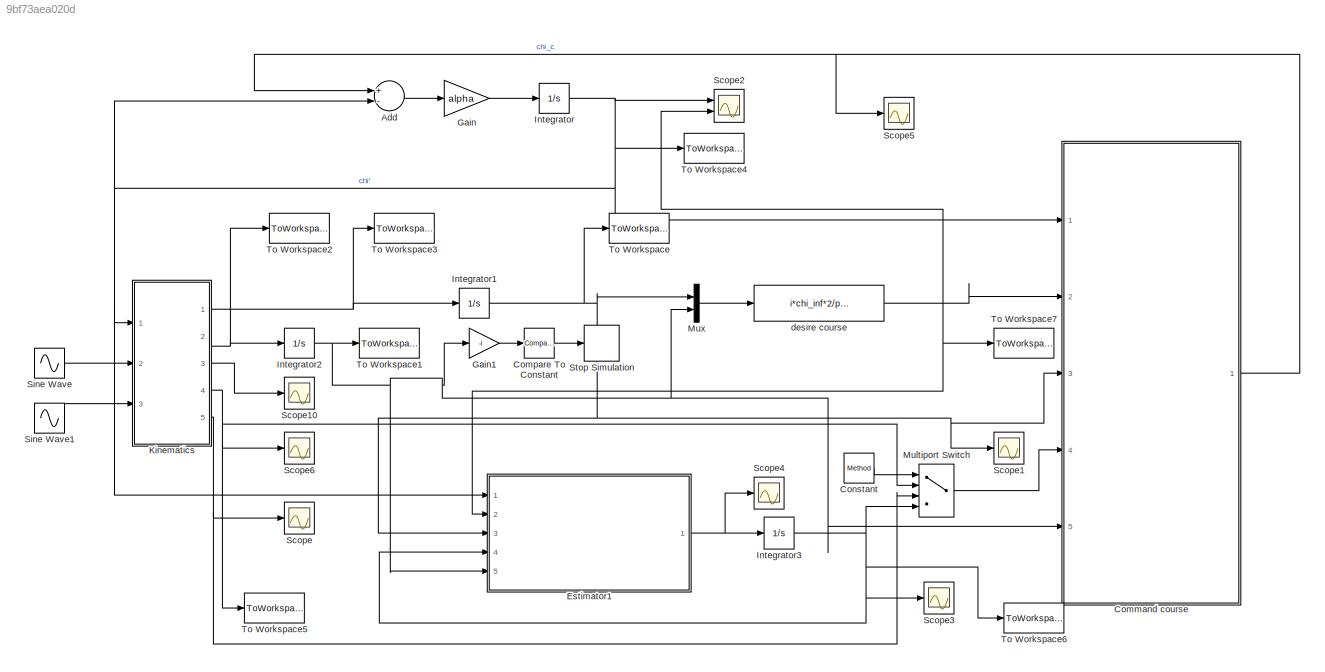
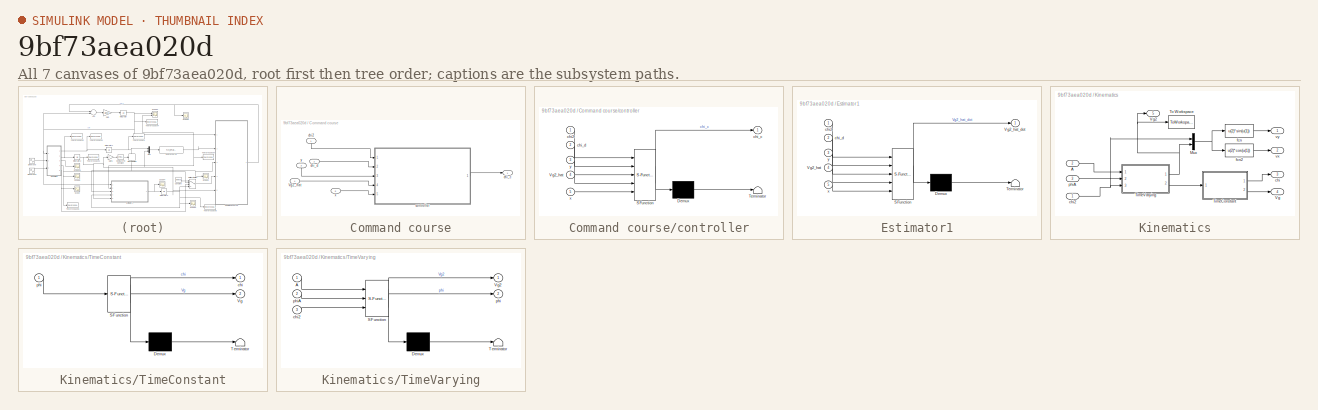
[diagram: thumbnail index - all 7 canvases of the model, root first then tree order]
MODEL slx_9bf73aea020d
KIND model
CONFIG AbsTol = auto
CONFIG FixedStep = 0.001
CONFIG MaxStep = auto
CONFIG MinStep = auto
CONFIG RelTol = 1e-9
CONFIG SampleTimeConstraint = Unconstrained
CONFIG Solver = VariableStepAuto
CONFIG SolverMode = Auto
CONFIG SolverName = VariableStepAuto
CONFIG StartTime = 0.0
CONFIG StopTime = 1000
BLOCK [Sum] Add
  InputSameDT = off
  Inputs = +-
  OutDataTypeStr = Inherit: Inherit via internal rule
  Ports = [2, 1]
  SaturateOnIntegerOverflow = off
BLOCK [SubSystem] Command course
  Ports = [5, 1]
  RequestExecContextInheritance = off
  Variant = off
BLOCK [Inport] Command course/Vg2_hat
  IconDisplay = Port number
  Port = 4
BLOCK [Inport] Command course/chi2
  IconDisplay = Port number
BLOCK [Outport] Command course/chi_c
  IconDisplay = Port number
BLOCK [Inport] Command course/chi_d
  IconDisplay = Port number
  Port = 2
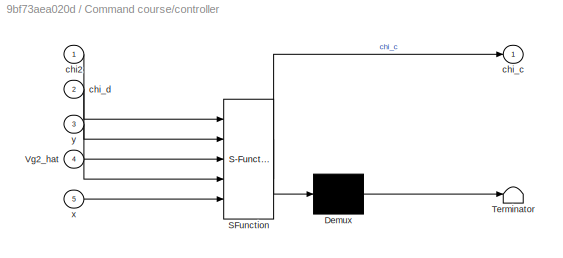
BLOCK [SubSystem] Command course/controller
  ErrorFcn = Stateflow.Translate.translate
  PermitHierarchicalResolution = ExplicitOnly
  Ports = [5, 1]
  RequestExecContextInheritance = off
  SFBlockType = MATLAB Function
  TreatAsAtomicUnit = on
  Variant = off
BLOCK [Demux] Command course/controller/ Demux 
  Outputs = 1
  Ports = [1, 1]
BLOCK [S-Function] Command course/controller/ SFunction 
  EnableBusSupport = on
  FunctionName = sf_sfun
  Parameters = a,alpha,b,chi_inf,epsi,i,k,kk
  PortCounts = [5 2]
  Ports = [5, 2]
  SFunctionDeploymentMode = off
  Tag = Stateflow S-Function RevisedStraightLine 2
BLOCK [Terminator] Command course/controller/ Terminator 
BLOCK [Inport] Command course/controller/Vg2_hat
  IconDisplay = Port number
  Port = 4
BLOCK [Inport] Command course/controller/chi2
  IconDisplay = Port number
BLOCK [Outport] Command course/controller/chi_c
  IconDisplay = Port number
BLOCK [Inport] Command course/controller/chi_d
  IconDisplay = Port number
  Port = 2
BLOCK [Inport] Command course/controller/x
  IconDisplay = Port number
  Port = 5
BLOCK [Inport] Command course/controller/y
  IconDisplay = Port number
  Port = 3
BLOCK [Inport] Command course/x
  IconDisplay = Port number
  Port = 5
BLOCK [Inport] Command course/y
  IconDisplay = Port number
  Port = 3
BLOCK [Reference] Compare To Constant  REF=simulink/Logic and Bit
Operations/Compare
To Constant
  Ports = [1, 1]
  SourceBlock = simulink/Logic and Bit\nOperations/Compare\nTo Constant
  SourceType = Compare To Constant
BLOCK [Constant] Constant
  Value = Method
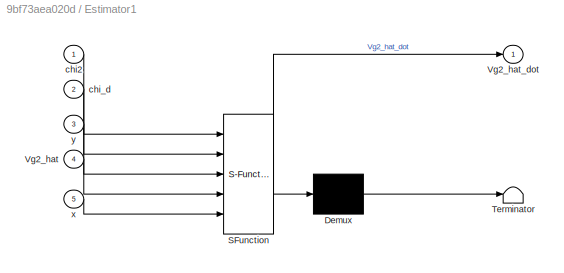
BLOCK [SubSystem] Estimator1
  ErrorFcn = Stateflow.Translate.translate
  PermitHierarchicalResolution = ExplicitOnly
  Ports = [5, 1]
  RequestExecContextInheritance = off
  SFBlockType = MATLAB Function
  TreatAsAtomicUnit = on
  Variant = off
BLOCK [Demux] Estimator1/ Demux 
  Outputs = 1
  Ports = [1, 1]
BLOCK [S-Function] Estimator1/ SFunction 
  EnableBusSupport = on
  FunctionName = sf_sfun
  Parameters = Gamma,Va,W,a,b,chi_inf,epsi,i,k,kk,phiw,y_int
  PortCounts = [5 2]
  Ports = [5, 2]
  SFunctionDeploymentMode = off
  Tag = Stateflow S-Function RevisedStraightLine 5
BLOCK [Terminator] Estimator1/ Terminator 
BLOCK [Inport] Estimator1/Vg2_hat
  IconDisplay = Port number
  Port = 4
BLOCK [Outport] Estimator1/Vg2_hat_dot
  IconDisplay = Port number
BLOCK [Inport] Estimator1/chi2
  IconDisplay = Port number
BLOCK [Inport] Estimator1/chi_d
  IconDisplay = Port number
  Port = 2
BLOCK [Inport] Estimator1/x
  IconDisplay = Port number
  Port = 5
BLOCK [Inport] Estimator1/y
  IconDisplay = Port number
  Port = 3
BLOCK [Gain] Gain
  Gain = alpha
  OutDataTypeStr = Inherit: Inherit via internal rule
  ParamDataTypeStr = Inherit: Inherit via internal rule
  SaturateOnIntegerOverflow = off
BLOCK [Gain] Gain1
  Gain = -i
  OutDataTypeStr = Inherit: Inherit via internal rule
  ParamDataTypeStr = Inherit: Inherit via internal rule
  SaturateOnIntegerOverflow = off
BLOCK [Integrator] Integrator
  InitialCondition = course_int
  Ports = [1, 1]
BLOCK [Integrator] Integrator1
  InitialCondition = y_int
  Ports = [1, 1]
BLOCK [Integrator] Integrator2
  InitialCondition = x_int
  Ports = [1, 1]
BLOCK [Integrator] Integrator3
  InitialCondition = Vg0
  Ports = [1, 1]
BLOCK [SubSystem] Kinematics
  Ports = [3, 5]
  RequestExecContextInheritance = off
  Variant = off
BLOCK [Inport] Kinematics/A
  IconDisplay = Port number
  Port = 2
BLOCK [Mux] Kinematics/Mux
  DisplayOption = bar
  Inputs = 2
  Ports = [2, 1]
BLOCK [SubSystem] Kinematics/TimeConstant
  ErrorFcn = Stateflow.Translate.translate
  PermitHierarchicalResolution = ExplicitOnly
  Ports = [1, 2]
  RequestExecContextInheritance = off
  SFBlockType = MATLAB Function
  TreatAsAtomicUnit = on
  Variant = off
BLOCK [Demux] Kinematics/TimeConstant/ Demux 
  Outputs = 1
  Ports = [1, 1]
BLOCK [S-Function] Kinematics/TimeConstant/ SFunction 
  EnableBusSupport = on
  FunctionName = sf_sfun
  Parameters = Va,W,phiw
  PortCounts = [1 3]
  Ports = [1, 3]
  SFunctionDeploymentMode = off
  Tag = Stateflow S-Function RevisedStraightLine 4
BLOCK [Terminator] Kinematics/TimeConstant/ Terminator 
BLOCK [Outport] Kinematics/TimeConstant/Vg
  IconDisplay = Port number
  Port = 2
BLOCK [Outport] Kinematics/TimeConstant/chi
  IconDisplay = Port number
BLOCK [Inport] Kinematics/TimeConstant/phi
  IconDisplay = Port number
BLOCK [SubSystem] Kinematics/TimeVarying
  ErrorFcn = Stateflow.Translate.translate
  PermitHierarchicalResolution = ExplicitOnly
  Ports = [3, 2]
  RequestExecContextInheritance = off
  SFBlockType = MATLAB Function
  TreatAsAtomicUnit = on
  Variant = off
BLOCK [Demux] Kinematics/TimeVarying/ Demux 
  Outputs = 1
  Ports = [1, 1]
BLOCK [S-Function] Kinematics/TimeVarying/ SFunction 
  EnableBusSupport = on
  FunctionName = sf_sfun
  Parameters = Va,W,phiw
  PortCounts = [3 3]
  Ports = [3, 3]
  SFunctionDeploymentMode = off
  Tag = Stateflow S-Function RevisedStraightLine 1
BLOCK [Terminator] Kinematics/TimeVarying/ Terminator 
BLOCK [Inport] Kinematics/TimeVarying/A
  IconDisplay = Port number
BLOCK [Outport] Kinematics/TimeVarying/Vg2
  IconDisplay = Port number
BLOCK [Inport] Kinematics/TimeVarying/chi2
  IconDisplay = Port number
  Port = 3
BLOCK [Outport] Kinematics/TimeVarying/phi
  IconDisplay = Port number
  Port = 2
BLOCK [Inport] Kinematics/TimeVarying/phiA
  IconDisplay = Port number
  Port = 2
BLOCK [ToWorkspace] Kinematics/To Workspace
  FixptAsFi = on
  MaxDataPoints = inf
  Ports = [1]
  SampleTime = -1
  Save2DSignal = 3-D array (concatenate along third dimension)
  SaveFormat = Timeseries
  VariableName = Vg2
BLOCK [Outport] Kinematics/Vg
  IconDisplay = Port number
  Port = 4
BLOCK [Outport] Kinematics/Vg2
  IconDisplay = Port number
  Port = 5
BLOCK [Outport] Kinematics/chi
  IconDisplay = Port number
  Port = 3
BLOCK [Inport] Kinematics/chi2
  IconDisplay = Port number
BLOCK [Fcn] Kinematics/fcn
  Expr = u(2)*sin(u(1))
BLOCK [Fcn] Kinematics/fcn2
  Expr = u(2)*cos(u(1))
BLOCK [Inport] Kinematics/phiA
  IconDisplay = Port number
  Port = 3
BLOCK [Outport] Kinematics/vx
  IconDisplay = Port number
  Port = 2
BLOCK [Outport] Kinematics/vy
  IconDisplay = Port number
BLOCK [MultiPortSwitch] Multiport Switch
  InputSameDT = off
  Ports = [4, 1]
  SaturateOnIntegerOverflow = off
BLOCK [Mux] Mux
  DisplayOption = bar
  Inputs = 2
  Ports = [2, 1]
BLOCK [Scope] Scope
  Ports = [1]
  ScopeSpecificationString = Simulink.scopes.TimeScopeBlockCfg('CurrentConfiguration', extmgr.ConfigurationSet(extmgr.Configuration('Core','General UI',true),extmgr.Configuration('Core','Source UI',true),extmgr.Configuration('Sources','WiredSimulink',true,'DataLoggingVariableName','ScopeData1','DataLoggingSaveFormat','Array','DataLoggingDecimation','1'),extmgr.Configuration('Visuals','Time Domain',true,'SerializedDisplays',{s...<+1464ch>
BLOCK [Scope] Scope1
  Ports = [1]
  ScopeSpecificationString = Simulink.scopes.TimeScopeBlockCfg('CurrentConfiguration', extmgr.ConfigurationSet(extmgr.Configuration('Core','General UI',true),extmgr.Configuration('Core','Source UI',true),extmgr.Configuration('Sources','WiredSimulink',true,'DataLoggingVariableName','ScopeData1','DataLoggingSaveFormat','Array','DataLoggingDecimation','1'),extmgr.Configuration('Visuals','Time Domain',true,'SerializedDisplays',{s...<+2072ch>
BLOCK [Scope] Scope10
  Ports = [1]
  ScopeSpecificationString = Simulink.scopes.TimeScopeBlockCfg('CurrentConfiguration', extmgr.ConfigurationSet(extmgr.Configuration('Core','General UI',true),extmgr.Configuration('Core','Source UI',true),extmgr.Configuration('Sources','WiredSimulink',true,'DataLoggingVariableName','ScopeData5'),extmgr.Configuration('Visuals','Time Domain',true,'SerializedDisplays',{struct('MinYLimReal','-0.59211','MaxYLimReal','1.14316','YLab...<+1408ch>
BLOCK [Scope] Scope2
  NumInputPorts = 2
  Ports = [2]
  ScopeSpecificationString = Simulink.scopes.TimeScopeBlockCfg('CurrentConfiguration', extmgr.ConfigurationSet(extmgr.Configuration('Core','General UI',true),extmgr.Configuration('Core','Source UI',true),extmgr.Configuration('Sources','WiredSimulink',true,'DataLoggingVariableName','ScopeData2'),extmgr.Configuration('Visuals','Time Domain',true,'SerializedDisplays',{struct('MinYLimReal','-1.59686','MaxYLimReal','1.05009','YLab...<+1453ch>
BLOCK [Scope] Scope3
  Ports = [1]
  ScopeSpecificationString = Simulink.scopes.TimeScopeBlockCfg('CurrentConfiguration', extmgr.ConfigurationSet(extmgr.Configuration('Core','General UI',true),extmgr.Configuration('Core','Source UI',true),extmgr.Configuration('Sources','WiredSimulink',true,'DataLoggingVariableName','ScopeData1'),extmgr.Configuration('Visuals','Time Domain',true,'SerializedDisplays',{struct('MinYLimReal','12.01287','MaxYLimReal','12.88413','YLa...<+1434ch>
BLOCK [Scope] Scope4
  Ports = [1]
  ScopeSpecificationString = Simulink.scopes.TimeScopeBlockCfg('CurrentConfiguration', extmgr.ConfigurationSet(extmgr.Configuration('Core','General UI',true),extmgr.Configuration('Core','Source UI',true),extmgr.Configuration('Sources','WiredSimulink',true,'DataLoggingVariableName','ScopeData2'),extmgr.Configuration('Visuals','Time Domain',true,'SerializedDisplays',{struct('MinYLimReal','-2.36479','MaxYLimReal','1.54751','YLab...<+1427ch>
BLOCK [Scope] Scope5
  Ports = [1]
  ScopeSpecificationString = Simulink.scopes.TimeScopeBlockCfg('CurrentConfiguration', extmgr.ConfigurationSet(extmgr.Configuration('Core','General UI',true),extmgr.Configuration('Core','Source UI',true),extmgr.Configuration('Sources','WiredSimulink',true,'DataLoggingVariableName','ScopeData1'),extmgr.Configuration('Visuals','Time Domain',true,'SerializedDisplays',{struct('MinYLimReal','-1.93676','MaxYLimReal','0.21519','YLab...<+1417ch>
BLOCK [Scope] Scope6
  Ports = [1]
  ScopeSpecificationString = Simulink.scopes.TimeScopeBlockCfg('CurrentConfiguration', extmgr.ConfigurationSet(extmgr.Configuration('Core','General UI',true),extmgr.Configuration('Core','Source UI',true),extmgr.Configuration('Sources','WiredSimulink',true,'DataLoggingVariableName','ScopeData1'),extmgr.Configuration('Visuals','Time Domain',true,'SerializedDisplays',{struct('MinYLimReal','5.97405','MaxYLimReal','16.35662','YLab...<+1713ch>
BLOCK [Sin] Sine Wave
  Amplitude = A
  Frequency = 0.1
  Phase = pi/2
  Ports = [0, 1]
  SampleTime = 0
BLOCK [Sin] Sine Wave1
  Amplitude = phiA
  Frequency = 0.1
  Ports = [0, 1]
  SampleTime = 0
BLOCK [Stop] Stop Simulation
BLOCK [ToWorkspace] To Workspace
  FixptAsFi = on
  MaxDataPoints = inf
  Ports = [1]
  SampleTime = -1
  Save2DSignal = 3-D array (concatenate along third dimension)
  SaveFormat = Timeseries
  VariableName = y
BLOCK [ToWorkspace] To Workspace1
  FixptAsFi = on
  MaxDataPoints = inf
  Ports = [1]
  SampleTime = -1
  Save2DSignal = 3-D array (concatenate along third dimension)
  SaveFormat = Timeseries
  VariableName = x
BLOCK [ToWorkspace] To Workspace2
  FixptAsFi = on
  MaxDataPoints = inf
  Ports = [1]
  SampleTime = -1
  Save2DSignal = 3-D array (concatenate along third dimension)
  SaveFormat = Timeseries
  VariableName = vx
BLOCK [ToWorkspace] To Workspace3
  FixptAsFi = on
  MaxDataPoints = inf
  Ports = [1]
  SampleTime = -1
  Save2DSignal = 3-D array (concatenate along third dimension)
  SaveFormat = Timeseries
  VariableName = vy
BLOCK [ToWorkspace] To Workspace4
  FixptAsFi = on
  MaxDataPoints = inf
  Ports = [1]
  SampleTime = -1
  Save2DSignal = 3-D array (concatenate along third dimension)
  SaveFormat = Timeseries
  VariableName = course
BLOCK [ToWorkspace] To Workspace5
  FixptAsFi = on
  MaxDataPoints = inf
  Ports = [1]
  SampleTime = -1
  Save2DSignal = 3-D array (concatenate along third dimension)
  SaveFormat = Timeseries
  VariableName = Vg
BLOCK [ToWorkspace] To Workspace6
  FixptAsFi = on
  MaxDataPoints = inf
  Ports = [1]
  SampleTime = -1
  Save2DSignal = 3-D array (concatenate along third dimension)
  SaveFormat = Timeseries
  VariableName = Vg2hat
BLOCK [ToWorkspace] To Workspace7
  FixptAsFi = on
  MaxDataPoints = inf
  Ports = [1]
  SampleTime = -1
  Save2DSignal = 3-D array (concatenate along third dimension)
  SaveFormat = Timeseries
  VariableName = chi_d
BLOCK [Fcn] desire course
  Expr = i*chi_inf*2/pi*atan(k*(u(1)-a*u(2)-b))+ang
LINE Add:1 -> Gain:1
LINE Command course/Vg2_hat:1 -> Command course/controller:4
LINE Command course/chi2:1 -> Command course/controller:1
LINE Command course/chi_d:1 -> Command course/controller:2
LINE Command course/controller:1 -> Command course/chi_c:1
LINE Command course/x:1 -> Command course/controller:5
LINE Command course/y:1 -> Command course/controller:3
NET Command course:1 -> Add:1, Scope5:1
LINE Compare To Constant:1 -> Stop Simulation:1
LINE Constant:1 -> Multiport Switch:1
NET Estimator1:1 -> Integrator3:1, Scope4:1
LINE Gain1:1 -> Compare To Constant:1
LINE Gain:1 -> Integrator:1
NET Integrator1:1 -> Command course:3, Estimator1:3, Mux:1, Scope1:1, To Workspace:1
NET Integrator2:1 -> Command course:5, Estimator1:5, Gain1:1, Mux:2, To Workspace1:1
NET Integrator3:1 -> Estimator1:4, Multiport Switch:4, Scope3:1, To Workspace6:1
NET Integrator:1 -> Add:2, Command course:1, Estimator1:1, Kinematics:1, Scope2:1, To Workspace4:1
LINE Kinematics/A:1 -> Kinematics/TimeVarying:1
NET Kinematics/Mux:1 -> Kinematics/fcn2:1, Kinematics/fcn:1
LINE Kinematics/TimeConstant:1 -> Kinematics/chi:1
LINE Kinematics/TimeConstant:2 -> Kinematics/Vg:1
NET Kinematics/TimeVarying:1 -> Kinematics/Mux:2, Kinematics/To Workspace:1, Kinematics/Vg2:1
LINE Kinematics/TimeVarying:2 -> Kinematics/TimeConstant:1
NET Kinematics/chi2:1 -> Kinematics/Mux:1, Kinematics/TimeVarying:3
LINE Kinematics/fcn2:1 -> Kinematics/vx:1
LINE Kinematics/fcn:1 -> Kinematics/vy:1
LINE Kinematics/phiA:1 -> Kinematics/TimeVarying:2
NET Kinematics:1 -> Integrator1:1, To Workspace3:1
NET Kinematics:2 -> Integrator2:1, To Workspace2:1
LINE Kinematics:3 -> Scope10:1
NET Kinematics:4 -> Multiport Switch:2, Scope6:1, To Workspace5:1
NET Kinematics:5 -> Multiport Switch:3, Scope:1
LINE Multiport Switch:1 -> Command course:4
LINE Mux:1 -> desire course:1
LINE Sine Wave1:1 -> Kinematics:3
LINE Sine Wave:1 -> Kinematics:2
NET desire course:1 -> Command course:2, Estimator1:2, Scope2:2, To Workspace7:1
note: NET lines group one-source signal fan-out (src -> all destinations, sorted); 1:1 wires keep LINE
CHART Kinematics/TimeVarying states=1 transitions=1
  STATE_LABEL 'eML_blk_kernel()'
  STATE_LABEL "SCRIPT:\nfunction [Vg2,phi] = TimeVarying(A,phiA,W,phiw,chi2,Va)\n% calculate the Vg' and heading angle(phi)\n\n%calculate the whole current vector including constant current (W,phiw) and time\n%varying current(A,phiA)\n% C cos(phic) = W cos(phiw)+ A cos(phiA)\n% C sin(phic) = W sin(phiw)+ A sin(phiA)\nphic = atan2(W*sin(phiw)+A*sin(phiA),W*cos(phiw)+A*cos(phiA));\nC = sqrt((W*sin(phiw)+A*sin(phiA))^2+(W*c...<+298ch>"
CHART Command course/controller states=1 transitions=1
  STATE_LABEL 'eML_blk_kernel()'
  STATE_LABEL 'SCRIPT:\nfunction chi_c = CommandCourse(chi2,chi_d,y,Vg2_hat,epsi,chi_inf,k,kk,alpha,i,x,a,b)\n%generate command course angle chi_c\nterm =(chi2-chi_d)/epsi;\nif abs(term)<=1\n    sat=term;\nelse\n    sat=sign(term);\nend\n\ne = y-(a*x+b);\nchi_c=chi2+i*chi_inf*2/pi/alpha*(k*(sin(chi2)-a*cos(chi2)))/(1+(k*(e))^2)*(Vg2_hat)-kk/alpha*sat;\n\n\nend'
CHART Kinematics/TimeConstant states=1 transitions=1
  STATE_LABEL 'eML_blk_kernel()'
  STATE_LABEL 'SCRIPT:\nfunction [chi,Vg] = TimeConstant(phi,Va,W,phiw)\n%calculation of Vg and chi\n\nchi = atan2(Va*sin(phi)+W*sin(phiw),Va*cos(phi)+W*cos(phiw));\nVg = sqrt((Va*sin(phi)+W*sin(phiw))^2+(Va*cos(phi)+W*cos(phiw))^2);\n\nend'
CHART Estimator1 states=1 transitions=1
  STATE_LABEL 'eML_blk_kernel()'
  STATE_LABEL "SCRIPT:\nfunction Vg2_hat_dot = estimator(chi2,chi_d,y,Vg2_hat,y_int,W,Va,epsi,phiw,chi_inf,k,kk,i,a,b,x,Gamma)\n%estimator of Vg'\n\nrho = y_int^2/pi^2; %positive scale factor used to weight the terms so that y and chi are similar in magnitude\n\ndiff_chi = chi2-chi_d; % error of course angle\n\nterm =diff_chi/epsi;\nif abs(term)<=1\n    sat=term;\nelse\n    sat=sign(term);\nend\n% derivative of Vg' over x'\nde...<+321ch>"
